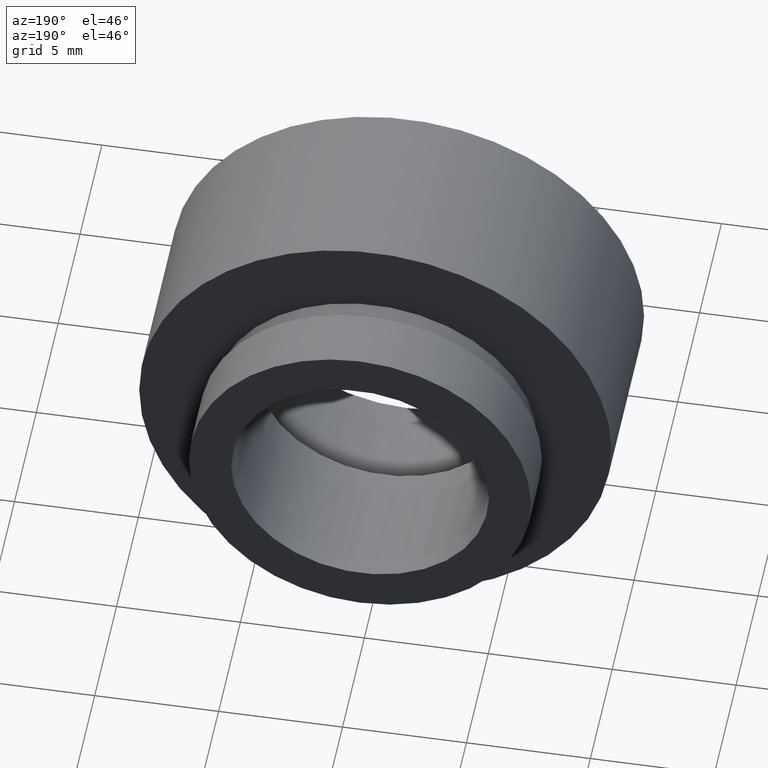
[diagram: clean part render]
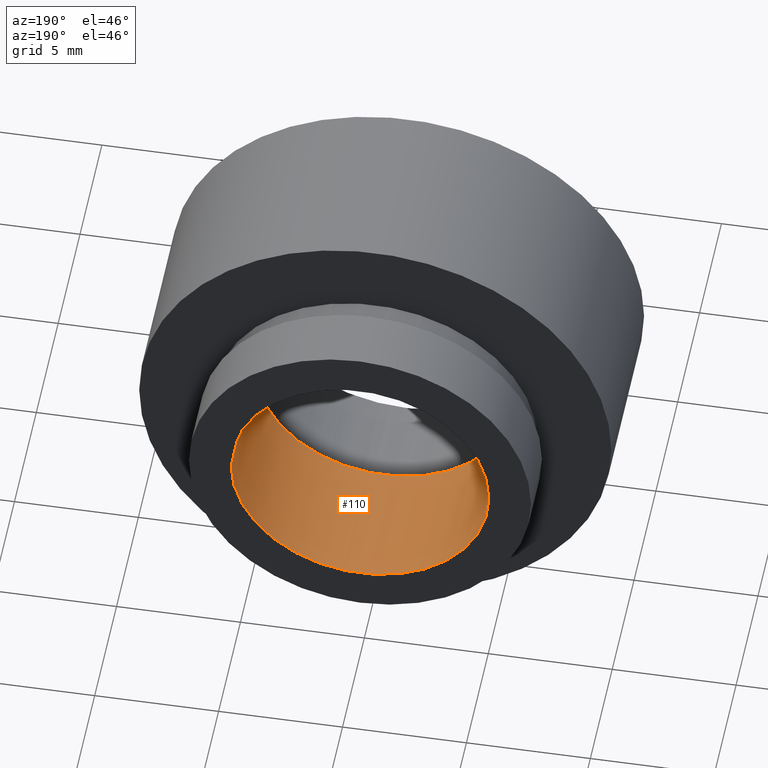
[diagram: same view with one face highlighted and labeled with its STEP entity id]
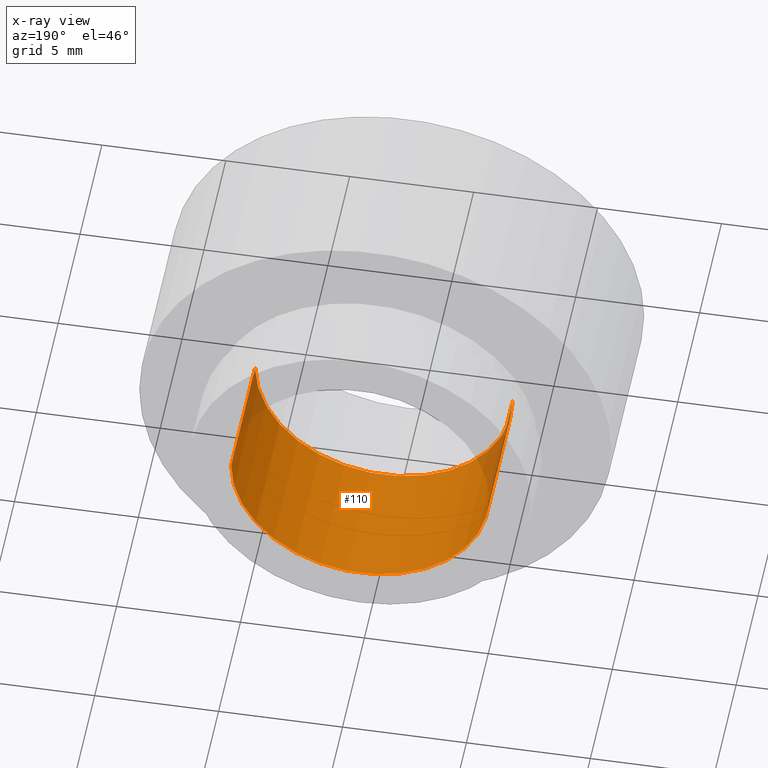
[diagram: x-ray of the same camera — body ghosted, the highlighted face saturated]
A machine part, auxiliary view. The second image highlights one B-rep face of the part: STEP entity #110.
The next image is the same camera in x-ray: the body ghosted, the highlighted face saturated — about 5% of this face is hidden behind the body in this view.
In plain terms, the highlighted cylindrical surface (partial cylindrical patch) has radius 5.2 mm, axis along (-0, 1, -0).
Its self-contained STEP definition (entity closure, byte-faithful):
#6 = CIRCLE ( 'NONE', #387, 5.200000000000001100 ) ;
#24 = VECTOR ( 'NONE', #77, 1000.000000000000000 ) ;
#34 = VECTOR ( 'NONE', #388, 1000.000000000000000 ) ;
#40 = ORIENTED_EDGE ( 'NONE', *, *, #79, .F. ) ;
#58 = ORIENTED_EDGE ( 'NONE', *, *, #207, .T. ) ;
#66 = CARTESIAN_POINT ( 'NONE',  ( 5.200000000000001100, 5.500000000000000900, 6.368163355566236400E-016 ) ) ;
#68 = CARTESIAN_POINT ( 'NONE',  ( 7.208293393765498600E-016, 11.00000000000000000, 0.0000000000000000000 ) ) ;
#73 = LINE ( 'NONE', #251, #34 ) ;
#74 = DIRECTION ( 'NONE',  ( -1.000000000000000000, 0.0000000000000000000, 0.0000000000000000000 ) ) ;
#76 = CARTESIAN_POINT ( 'NONE',  ( -5.200000000000000200, 16.88601823708207700, 0.0000000000000000000 ) ) ;
#77 = DIRECTION ( 'NONE',  ( -1.224646799147351000E-016, 1.000000000000000000, -0.0000000000000000000 ) ) ;
#79 = EDGE_CURVE ( 'NONE', #443, #265, #607, .T. ) ;
#110 = ADVANCED_FACE ( 'NONE', ( #393 ), #407, .F. ) ;
#141 = DIRECTION ( 'NONE',  ( -1.000000000000000000, -1.668003342285391300E-016, 0.0000000000000000000 ) ) ;
#146 = ORIENTED_EDGE ( 'NONE', *, *, #614, .F. ) ;
#161 = ORIENTED_EDGE ( 'NONE', *, *, #420, .T. ) ;
#190 = DIRECTION ( 'NONE',  ( -1.224646799147351000E-016, 1.000000000000000000, -0.0000000000000000000 ) ) ;
#198 = CARTESIAN_POINT ( 'NONE',  ( -5.199999999999998400, 5.499999999999999100, 0.0000000000000000000 ) ) ;
#207 = EDGE_CURVE ( 'NONE', #443, #534, #73, .T. ) ;
#211 = EDGE_LOOP ( 'NONE', ( #40, #58, #161, #146 ) ) ;
#251 = CARTESIAN_POINT ( 'NONE',  ( 5.200000000000000200, 16.88601823708207700, 6.368163355566236400E-016 ) ) ;
#265 = VERTEX_POINT ( 'NONE', #198 ) ;
#266 = DIRECTION ( 'NONE',  ( -1.224646799147351000E-016, 1.000000000000000000, -0.0000000000000000000 ) ) ;
#286 = CARTESIAN_POINT ( 'NONE',  ( 1.394385078907592800E-015, 5.500000000000000000, 0.0000000000000000000 ) ) ;
#349 = LINE ( 'NONE', #76, #24 ) ;
#376 = CARTESIAN_POINT ( 'NONE',  ( -5.200000000000000200, 11.00000000000000000, 0.0000000000000000000 ) ) ;
#387 = AXIS2_PLACEMENT_3D ( 'NONE', #68, #266, #74 ) ;
#388 = DIRECTION ( 'NONE',  ( -1.224646799147351000E-016, 1.000000000000000000, -0.0000000000000000000 ) ) ;
#393 = FACE_OUTER_BOUND ( 'NONE', #211, .T. ) ;
#407 = CYLINDRICAL_SURFACE ( 'NONE', #462, 5.200000000000000200 ) ;
#420 = EDGE_CURVE ( 'NONE', #534, #594, #6, .T. ) ;
#443 = VERTEX_POINT ( 'NONE', #66 ) ;
#458 = CARTESIAN_POINT ( 'NONE',  ( 5.200000000000001100, 11.00000000000000000, 6.368163355566236400E-016 ) ) ;
#462 = AXIS2_PLACEMENT_3D ( 'NONE', #526, #190, #536 ) ;
#521 = AXIS2_PLACEMENT_3D ( 'NONE', #286, #522, #141 ) ;
#522 = DIRECTION ( 'NONE',  ( -1.224646799147351000E-016, 1.000000000000000000, -0.0000000000000000000 ) ) ;
#526 = CARTESIAN_POINT ( 'NONE',  ( 0.0000000000000000000, 16.88601823708207700, 0.0000000000000000000 ) ) ;
#534 = VERTEX_POINT ( 'NONE', #458 ) ;
#536 = DIRECTION ( 'NONE',  ( -1.000000000000000000, 0.0000000000000000000, 0.0000000000000000000 ) ) ;
#594 = VERTEX_POINT ( 'NONE', #376 ) ;
#607 = CIRCLE ( 'NONE', #521, 5.200000000000000200 ) ;
#614 = EDGE_CURVE ( 'NONE', #265, #594, #349, .T. ) ;